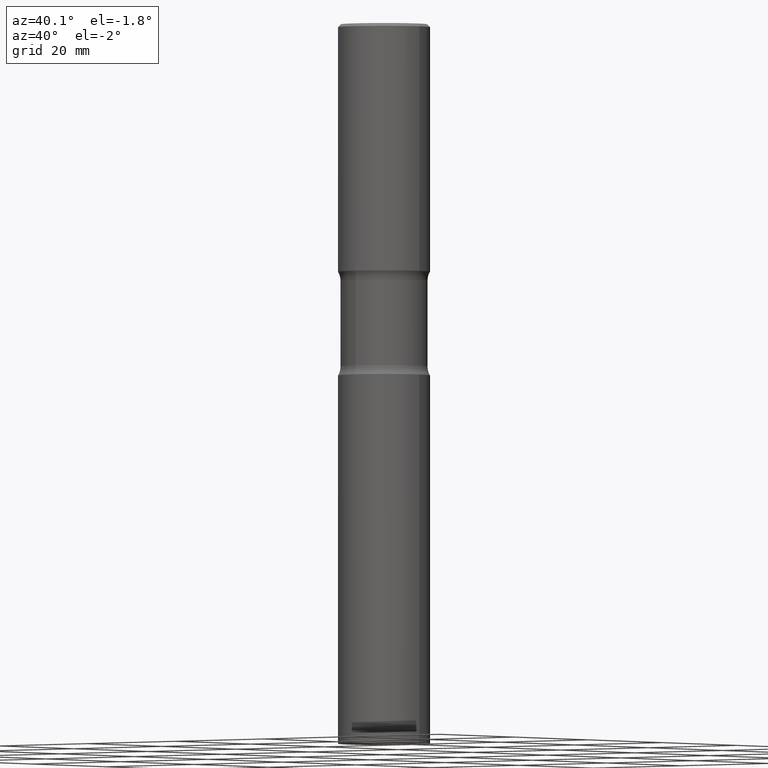
[diagram: clean part render]
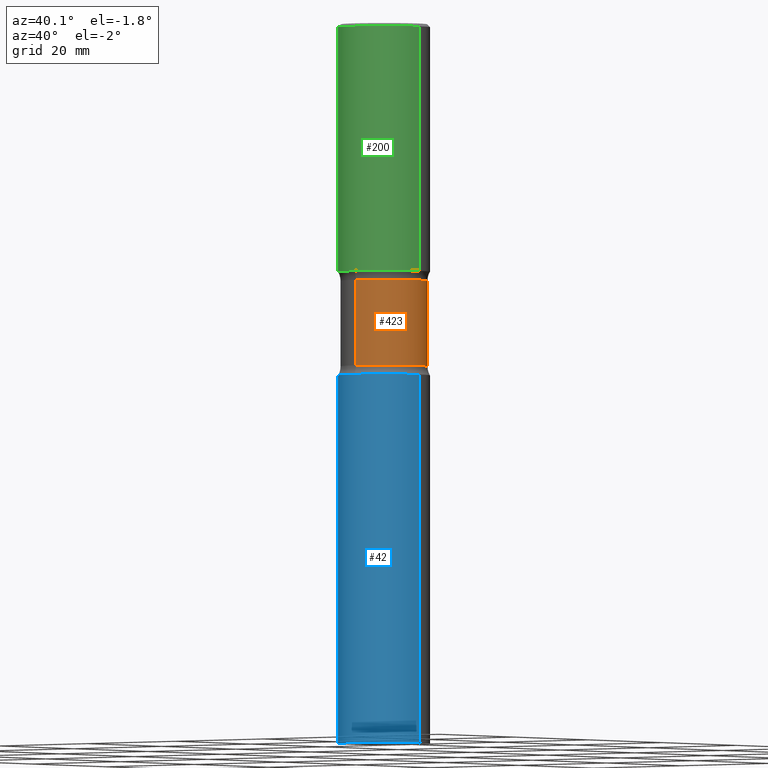
[diagram: same view with three faces highlighted in distinct colors, each labeled with its STEP entity id]
A machine part, auxiliary view with three faces highlighted in distinct colors.
Their STEP definitions:

[orange] entity #423 — the highlighted cylindrical surface (partial cylindrical patch) has radius 7.5819 mm, axis along (0, -0, -1).
#6 = VERTEX_POINT ( 'NONE', #454 ) ;
#16 = DIRECTION ( 'NONE',  ( 2.483323297951755230E-29, -3.437271552089479602E-15, -1.000000000000000000 ) ) ;
#62 = VECTOR ( 'NONE', #352, 39.37007874015748143 ) ;
#84 = AXIS2_PLACEMENT_3D ( 'NONE', #351, #272, #502 ) ;
#88 = CARTESIAN_POINT ( 'NONE',  ( -2.047858652334681138E-15, -0.2985000000000170850, -4.921299999999998676 ) ) ;
#89 = ORIENTED_EDGE ( 'NONE', *, *, #277, .F. ) ;
#109 = VERTEX_POINT ( 'NONE', #153 ) ;
#132 = LINE ( 'NONE', #88, #424 ) ;
#134 = FACE_OUTER_BOUND ( 'NONE', #319, .T. ) ;
#142 = AXIS2_PLACEMENT_3D ( 'NONE', #426, #203, #466 ) ;
#153 = CARTESIAN_POINT ( 'NONE',  ( -2.104286248366415011E-15, -0.2985000000000083142, -2.339616957964294031 ) ) ;
#194 = CIRCLE ( 'NONE', #142, 0.2985000000000001541 ) ;
#203 = DIRECTION ( 'NONE',  ( 2.483323297951754950E-29, -3.437271552089479207E-15, -1.000000000000000000 ) ) ;
#209 = DIRECTION ( 'NONE',  ( 2.483323297951754950E-29, -3.437271552089479207E-15, -1.000000000000000000 ) ) ;
#215 = EDGE_CURVE ( 'NONE', #254, #288, #255, .T. ) ;
#254 = VERTEX_POINT ( 'NONE', #307 ) ;
#255 = CIRCLE ( 'NONE', #84, 0.2984999999999999876 ) ;
#272 = DIRECTION ( 'NONE',  ( 2.483323297951754950E-29, -3.437271552089479207E-15, -1.000000000000000000 ) ) ;
#274 = AXIS2_PLACEMENT_3D ( 'NONE', #316, #209, #403 ) ;
#277 = EDGE_CURVE ( 'NONE', #6, #109, #194, .T. ) ;
#288 = VERTEX_POINT ( 'NONE', #348 ) ;
#289 = LINE ( 'NONE', #479, #62 ) ;
#307 = CARTESIAN_POINT ( 'NONE',  ( 2.084414359289392801E-15, 0.2984999999999938258, -1.754983042035705765 ) ) ;
#316 = CARTESIAN_POINT ( 'NONE',  ( 1.213026759878326104E-28, -1.704603471316555974E-14, -4.921299999999999564 ) ) ;
#319 = EDGE_LOOP ( 'NONE', ( #452, #485, #89, #375 ) ) ;
#348 = CARTESIAN_POINT ( 'NONE',  ( -2.104286248366430789E-15, -0.2985000000000060938, -1.754983042035703544 ) ) ;
#351 = CARTESIAN_POINT ( 'NONE',  ( 4.267278928370798497E-29, -6.162543508656387165E-15, -1.754983042035704655 ) ) ;
#352 = DIRECTION ( 'NONE',  ( 2.483323297951755230E-29, -3.437271552089479602E-15, -1.000000000000000000 ) ) ;
#373 = EDGE_CURVE ( 'NONE', #254, #6, #289, .T. ) ;
#375 = ORIENTED_EDGE ( 'NONE', *, *, #373, .F. ) ;
#380 = EDGE_CURVE ( 'NONE', #288, #109, #132, .T. ) ;
#394 = CYLINDRICAL_SURFACE ( 'NONE', #274, 0.2985000000000000431 ) ;
#403 = DIRECTION ( 'NONE',  ( 6.982962677686265922E-15, 1.000000000000000000, -3.660767830705879955E-15 ) ) ;
#423 = ADVANCED_FACE ( 'NONE', ( #134 ), #394, .T. ) ;
#424 = VECTOR ( 'NONE', #16, 39.37007874015748143 ) ;
#426 = CARTESIAN_POINT ( 'NONE',  ( 5.719113952569034944E-29, -8.172089036264403622E-15, -2.339616957964294919 ) ) ;
#452 = ORIENTED_EDGE ( 'NONE', *, *, #215, .T. ) ;
#454 = CARTESIAN_POINT ( 'NONE',  ( 2.084414359289408579E-15, 0.2984999999999919940, -2.339616957964296251 ) ) ;
#466 = DIRECTION ( 'NONE',  ( 6.982962677686265922E-15, 1.000000000000000000, -3.660767830705878378E-15 ) ) ;
#479 = CARTESIAN_POINT ( 'NONE',  ( 2.084414359289472082E-15, 0.2984999999999830012, -4.921300000000000452 ) ) ;
#485 = ORIENTED_EDGE ( 'NONE', *, *, #380, .T. ) ;
#502 = DIRECTION ( 'NONE',  ( 6.982962677686265922E-15, 1.000000000000000000, -3.660767830705880744E-15 ) ) ;

[blue] entity #42 — the highlighted cylindrical surface (partial cylindrical patch) has radius 7.9997 mm, axis along (-0, 0, 1).
#3 = CARTESIAN_POINT ( 'NONE',  ( 0.3149499999999998967, -2.199284095337288688E-15, 1.535751875536929289E-29 ) ) ;
#15 = ORIENTED_EDGE ( 'NONE', *, *, #106, .T. ) ;
#31 = DIRECTION ( 'NONE',  ( 1.000000000000000000, -6.982962677686265922E-15, 4.876176775795935232E-29 ) ) ;
#42 = ADVANCED_FACE ( 'NONE', ( #193 ), #420, .T. ) ;
#43 = CARTESIAN_POINT ( 'NONE',  ( -0.3149499999999999522, -1.054603000183079934E-14, -2.401600000000000179 ) ) ;
#80 = AXIS2_PLACEMENT_3D ( 'NONE', #107, #262, #413 ) ;
#81 = DIRECTION ( 'NONE',  ( -2.445468806185136877E-29, 3.491481338843145188E-15, 1.000000000000000000 ) ) ;
#106 = EDGE_CURVE ( 'NONE', #293, #210, #506, .T. ) ;
#107 = CARTESIAN_POINT ( 'NONE',  ( 1.203488563587891146E-28, -1.718262711284877024E-14, -4.921299999999999564 ) ) ;
#120 = AXIS2_PLACEMENT_3D ( 'NONE', #477, #248, #211 ) ;
#129 = LINE ( 'NONE', #3, #322 ) ;
#164 = CARTESIAN_POINT ( 'NONE',  ( -0.3149499999999998967, -1.054603000183079934E-14, -4.921299999999999564 ) ) ;
#169 = DIRECTION ( 'NONE',  ( -2.445468806185136877E-29, 3.491481338843145188E-15, 1.000000000000000000 ) ) ;
#193 = FACE_OUTER_BOUND ( 'NONE', #325, .T. ) ;
#205 = CARTESIAN_POINT ( 'NONE',  ( 0.3149499999999998967, -1.938191120818605853E-14, -4.921299999999999564 ) ) ;
#210 = VERTEX_POINT ( 'NONE', #205 ) ;
#211 = DIRECTION ( 'NONE',  ( 1.000000000000000000, -6.982962677686268288E-15, 0.000000000000000000 ) ) ;
#212 = ORIENTED_EDGE ( 'NONE', *, *, #336, .F. ) ;
#221 = EDGE_CURVE ( 'NONE', #210, #298, #129, .T. ) ;
#222 = DIRECTION ( 'NONE',  ( -2.445468806185136597E-29, 3.491481338843145583E-15, 1.000000000000000000 ) ) ;
#245 = VECTOR ( 'NONE', #169, 39.37007874015748143 ) ;
#248 = DIRECTION ( 'NONE',  ( -2.445468806185136597E-29, 3.491481338843145583E-15, 1.000000000000000000 ) ) ;
#249 = VERTEX_POINT ( 'NONE', #43 ) ;
#260 = CARTESIAN_POINT ( 'NONE',  ( 0.000000000000000000, 0.000000000000000000, 0.000000000000000000 ) ) ;
#262 = DIRECTION ( 'NONE',  ( -2.445468806185136597E-29, 3.491481338843145583E-15, 1.000000000000000000 ) ) ;
#273 = CIRCLE ( 'NONE', #120, 0.3149499999999999522 ) ;
#293 = VERTEX_POINT ( 'NONE', #164 ) ;
#298 = VERTEX_POINT ( 'NONE', #311 ) ;
#311 = CARTESIAN_POINT ( 'NONE',  ( 0.3149499999999999522, -1.058442567870298871E-14, -2.401600000000000179 ) ) ;
#322 = VECTOR ( 'NONE', #81, 39.37007874015748143 ) ;
#325 = EDGE_LOOP ( 'NONE', ( #212, #15, #443, #446 ) ) ;
#336 = EDGE_CURVE ( 'NONE', #293, #249, #393, .T. ) ;
#391 = EDGE_CURVE ( 'NONE', #249, #298, #273, .T. ) ;
#393 = LINE ( 'NONE', #475, #245 ) ;
#413 = DIRECTION ( 'NONE',  ( 1.000000000000000000, -6.982962677686259611E-15, 0.000000000000000000 ) ) ;
#414 = AXIS2_PLACEMENT_3D ( 'NONE', #260, #222, #31 ) ;
#420 = CYLINDRICAL_SURFACE ( 'NONE', #414, 0.3149499999999998967 ) ;
#443 = ORIENTED_EDGE ( 'NONE', *, *, #221, .T. ) ;
#446 = ORIENTED_EDGE ( 'NONE', *, *, #391, .F. ) ;
#475 = CARTESIAN_POINT ( 'NONE',  ( -0.3149499999999998967, 2.237854346276434801E-15, -1.549218606675782116E-29 ) ) ;
#477 = CARTESIAN_POINT ( 'NONE',  ( 5.873037884934224349E-29, -8.385141583365698841E-15, -2.401600000000000179 ) ) ;
#506 = CIRCLE ( 'NONE', #80, 0.3149499999999998967 ) ;

[green] entity #200 — the highlighted cylindrical surface (partial cylindrical patch) has radius 7.9997 mm, axis along (-0, 0, 1).
#14 = VERTEX_POINT ( 'NONE', #68 ) ;
#45 = FACE_OUTER_BOUND ( 'NONE', #364, .T. ) ;
#53 = CIRCLE ( 'NONE', #474, 0.3149500000000000077 ) ;
#61 = DIRECTION ( 'NONE',  ( -2.445468806185136597E-29, 3.491481338843145583E-15, 1.000000000000000000 ) ) ;
#68 = CARTESIAN_POINT ( 'NONE',  ( -0.3149499999999998967, 2.129454468560425784E-15, -0.02000000000000006981 ) ) ;
#70 = DIRECTION ( 'NONE',  ( -2.445468806185136877E-29, 3.491481338843145188E-15, 1.000000000000000000 ) ) ;
#71 = EDGE_CURVE ( 'NONE', #14, #98, #435, .T. ) ;
#79 = DIRECTION ( 'NONE',  ( 1.000000000000000000, -6.982962677686266711E-15, 4.876176775795935232E-29 ) ) ;
#85 = CARTESIAN_POINT ( 'NONE',  ( 0.000000000000000000, 0.000000000000000000, 0.000000000000000000 ) ) ;
#93 = DIRECTION ( 'NONE',  ( 1.000000000000000000, -6.982962677686266711E-15, 0.000000000000000000 ) ) ;
#98 = VERTEX_POINT ( 'NONE', #495 ) ;
#103 = VERTEX_POINT ( 'NONE', #297 ) ;
#112 = VECTOR ( 'NONE', #425, 39.37007874015748143 ) ;
#121 = VECTOR ( 'NONE', #70, 39.37007874015748143 ) ;
#147 = DIRECTION ( 'NONE',  ( 1.000000000000000000, -6.982962677686265922E-15, 0.000000000000000000 ) ) ;
#172 = ORIENTED_EDGE ( 'NONE', *, *, #471, .T. ) ;
#174 = ORIENTED_EDGE ( 'NONE', *, *, #237, .F. ) ;
#199 = CARTESIAN_POINT ( 'NONE',  ( 0.3149500000000000077, -8.110362001998734458E-15, -1.692999999999999616 ) ) ;
#200 = ADVANCED_FACE ( 'NONE', ( #45 ), #234, .T. ) ;
#234 = CYLINDRICAL_SURFACE ( 'NONE', #464, 0.3149499999999999522 ) ;
#237 = EDGE_CURVE ( 'NONE', #103, #14, #461, .T. ) ;
#239 = DIRECTION ( 'NONE',  ( -2.445468806185136597E-29, 3.491481338843145583E-15, 1.000000000000000000 ) ) ;
#291 = VERTEX_POINT ( 'NONE', #199 ) ;
#294 = CARTESIAN_POINT ( 'NONE',  ( 0.3149499999999999522, -2.199284095337289476E-15, 1.535751875536929569E-29 ) ) ;
#296 = LINE ( 'NONE', #294, #121 ) ;
#297 = CARTESIAN_POINT ( 'NONE',  ( -0.3149500000000000077, -7.525994204427177605E-16, -1.692999999999999616 ) ) ;
#332 = CARTESIAN_POINT ( 'NONE',  ( 4.890937612370289799E-31, -6.982962677686315028E-17, -0.02000000000000006981 ) ) ;
#355 = CARTESIAN_POINT ( 'NONE',  ( 4.140178688871434900E-29, -5.911077906661444587E-15, -1.692999999999999616 ) ) ;
#364 = EDGE_LOOP ( 'NONE', ( #174, #402, #172, #399 ) ) ;
#387 = CARTESIAN_POINT ( 'NONE',  ( -0.3149499999999999522, 2.237854346276435196E-15, -1.549218606675782116E-29 ) ) ;
#399 = ORIENTED_EDGE ( 'NONE', *, *, #71, .F. ) ;
#402 = ORIENTED_EDGE ( 'NONE', *, *, #432, .T. ) ;
#405 = AXIS2_PLACEMENT_3D ( 'NONE', #332, #493, #147 ) ;
#425 = DIRECTION ( 'NONE',  ( -2.445468806185136877E-29, 3.491481338843145188E-15, 1.000000000000000000 ) ) ;
#432 = EDGE_CURVE ( 'NONE', #103, #291, #53, .T. ) ;
#435 = CIRCLE ( 'NONE', #405, 0.3149499999999998967 ) ;
#461 = LINE ( 'NONE', #387, #112 ) ;
#464 = AXIS2_PLACEMENT_3D ( 'NONE', #85, #239, #79 ) ;
#471 = EDGE_CURVE ( 'NONE', #291, #98, #296, .T. ) ;
#474 = AXIS2_PLACEMENT_3D ( 'NONE', #355, #61, #93 ) ;
#493 = DIRECTION ( 'NONE',  ( -2.445468806185136597E-29, 3.491481338843145583E-15, 1.000000000000000000 ) ) ;
#495 = CARTESIAN_POINT ( 'NONE',  ( 0.3149499999999998967, -2.230543471175006266E-15, -0.02000000000000006981 ) ) ;